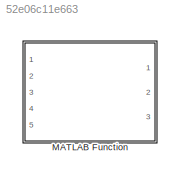
MODEL slx_52e06c11e663
KIND model
CONFIG AbsTol = auto
CONFIG EnableMultiTasking = off
CONFIG FixedStep = auto
CONFIG MaxStep = auto
CONFIG MinStep = auto
CONFIG RelTol = 1e-3
CONFIG SampleTimeConstraint = Unconstrained
CONFIG Solver = VariableStepAuto
CONFIG SolverName = VariableStepAuto
CONFIG StartTime = 0.0
CONFIG StopTime = 10.0
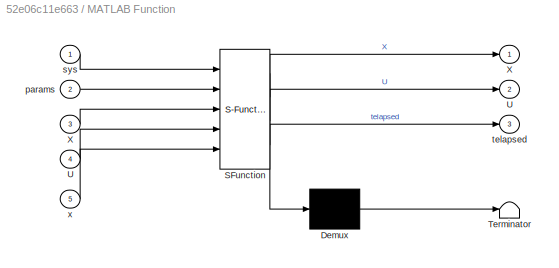
BLOCK [SubSystem] MATLAB Function
  ErrorFcn = Stateflow.Translate.translate
  PermitHierarchicalResolution = ExplicitOnly
  Ports = [5, 3]
  RequestExecContextInheritance = off
  SFBlockType = MATLAB Function
  TreatAsAtomicUnit = on
BLOCK [Demux] MATLAB Function/ Demux 
  Outputs = 1
  Ports = [1, 1]
BLOCK [S-Function] MATLAB Function/ SFunction 
  EnableBusSupport = on
  FunctionName = sf_sfun
  PortCounts = [5 4]
  Ports = [5, 4]
  SFcnIsStateOwnerBlock = off
  SFunctionDeploymentMode = off
  Tag = Stateflow S-Function testing_mfunction 2
BLOCK [Terminator] MATLAB Function/ Terminator 
BLOCK [Outport] MATLAB Function/U
  IconDisplay = Port number
  Port = 2
BLOCK [Inport] MATLAB Function/U 
  IconDisplay = Port number
  Port = 4
BLOCK [Outport] MATLAB Function/X
  IconDisplay = Port number
BLOCK [Inport] MATLAB Function/X 
  IconDisplay = Port number
  Port = 3
BLOCK [Inport] MATLAB Function/params
  IconDisplay = Port number
  Port = 2
BLOCK [Inport] MATLAB Function/sys
  IconDisplay = Port number
BLOCK [Outport] MATLAB Function/telapsed
  IconDisplay = Port number
  Port = 3
BLOCK [Inport] MATLAB Function/x
  IconDisplay = Port number
  Port = 5
CHART MATLAB Function states=1 transitions=1
  STATE_LABEL 'eML_blk_kernel()'
  STATE_LABEL 'SCRIPT:\nfunction [X,U,telapsed] = fcn(sys,params,X,U,x)\n\n[X,U,telapsed] = fmpc_step(sys,params,X,U,x);\n\n'
